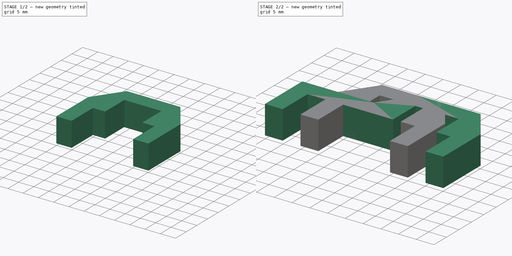
[diagram: build sequence overview — one tinted view per stage of 2, left to right]
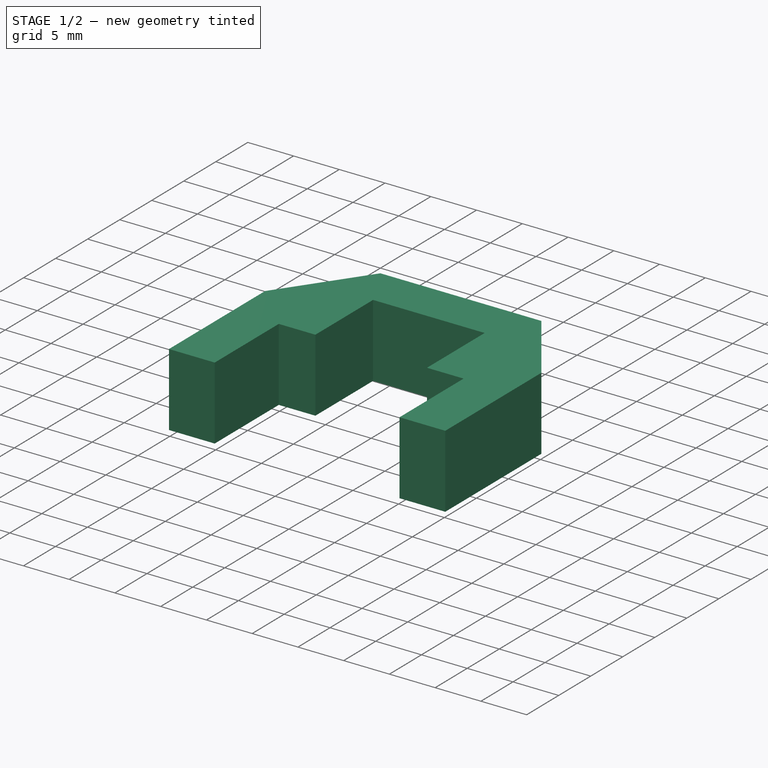
[diagram: stage 1 of 2 — iso view after this stage's code; geometry added in this stage tinted green]
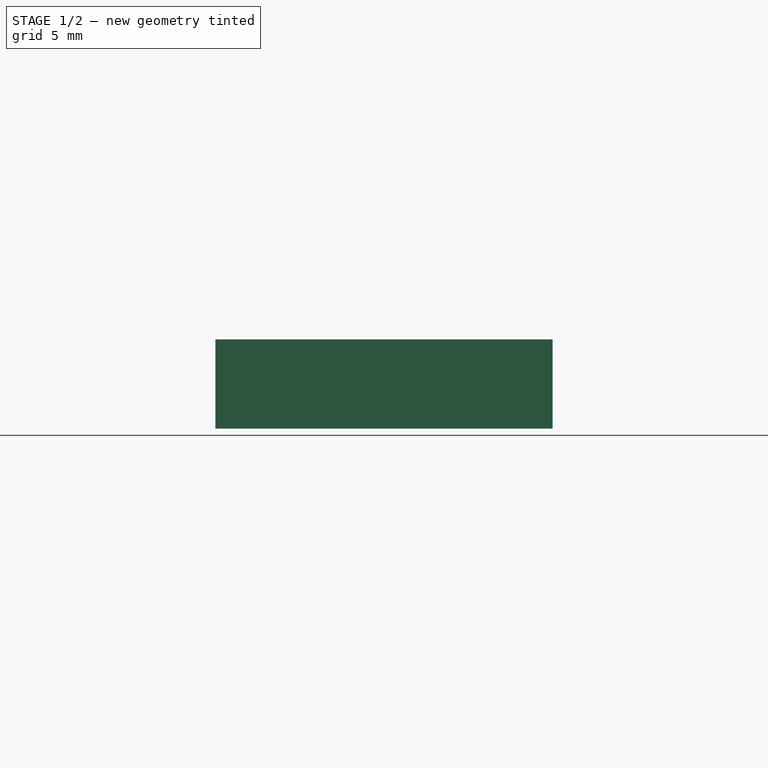
[diagram: stage 1 of 2 — front view after this stage's code; geometry added in this stage tinted green]
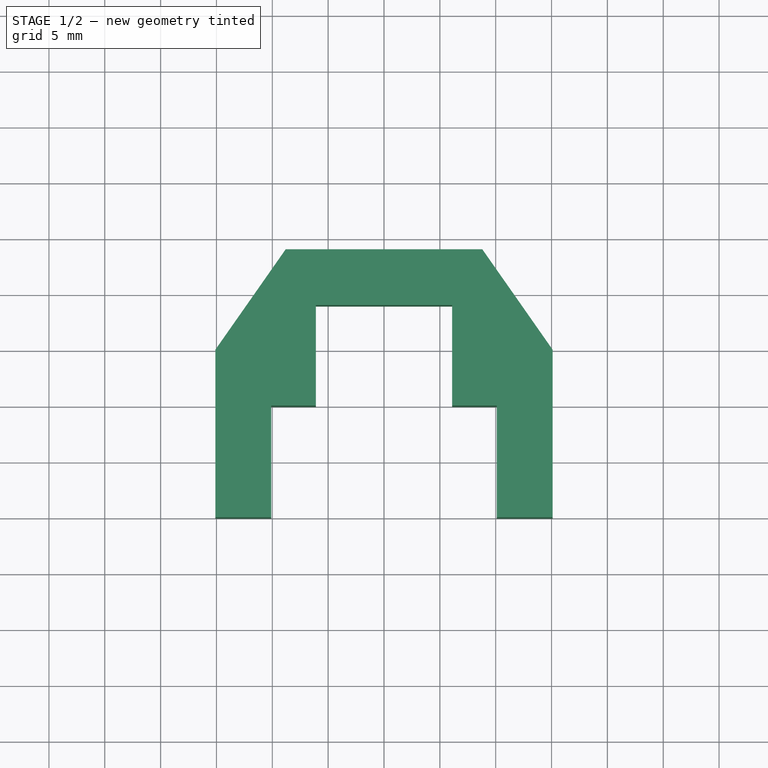
[diagram: stage 1 of 2 — top view after this stage's code; geometry added in this stage tinted green]
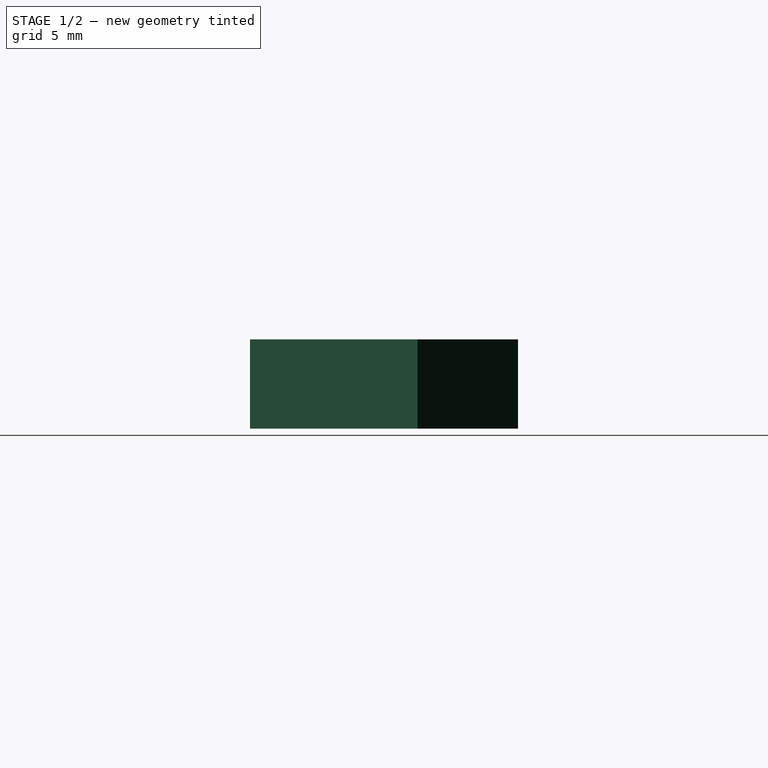
[diagram: stage 1 of 2 — right view after this stage's code; geometry added in this stage tinted green]
FCSTD DOCUMENT  (FreeCAD 0.20R27078 (Git))
Label: rail fixture
License: All rights reserved
LicenseURL: http://en.wikipedia.org/wiki/All_rights_reserved
objects: Sketcher::SketchObject×2, PartDesign::Pad×2, PartDesign::Body×2
note: 8 computed .brp shape members not serialized (recipe doc carries the construction recipe); baked Part::Feature solids carry a one-line shape summary decoded from their .brp

FEATURE [PartDesign::Body] Body  label="mgn12 - 2040"
  Group = -> [Sketch,Pad]
  Origin = -> Origin
  Tip = -> Pad
FEATURE [Sketcher::SketchObject] Sketch001
  FullyConstrained = true
  MapMode = 5
  Support = -> [XY_Plane001]
  sketch-geometry (16):
    g0: LineSegment StartX=-6.1 StartY=0 StartZ=0 EndX=-6.1 EndY=9 EndZ=0
    g1: LineSegment StartX=-6.1 StartY=9 StartZ=0 EndX=6.1 EndY=9 EndZ=0
    g2: LineSegment StartX=6.1 StartY=9 StartZ=0 EndX=6.1 EndY=0 EndZ=0
    g3: LineSegment StartX=-15.1 StartY=5 StartZ=0 EndX=-15.1 EndY=-10 EndZ=0
    g4: LineSegment StartX=-15.1 StartY=-10 StartZ=0 EndX=-10.1 EndY=-10 EndZ=0
    g5: LineSegment StartX=-10.1 StartY=-10 StartZ=0 EndX=-10.1 EndY=0 EndZ=0
    g6: LineSegment StartX=6.1 StartY=0 StartZ=0 EndX=10.1 EndY=0 EndZ=0
    g7: LineSegment StartX=10.1 StartY=0 StartZ=0 EndX=10.1 EndY=-10 EndZ=0
    g8: LineSegment StartX=10.1 StartY=-10 StartZ=0 EndX=15.1 EndY=-10 EndZ=0
    g9: LineSegment StartX=15.1 StartY=-10 StartZ=0 EndX=15.1 EndY=5 EndZ=0
    g10: LineSegment StartX=8.79813 StartY=14 StartZ=0 EndX=15.1 EndY=5 EndZ=0
    g11: LineSegment StartX=-8.79813 StartY=14 StartZ=0 EndX=8.79813 EndY=14 EndZ=0
    g12: LineSegment StartX=-8.79813 StartY=14 StartZ=0 EndX=-15.1 EndY=5 EndZ=0
    g13: LineSegment StartX=6.1 StartY=9 StartZ=0 EndX=12.2992 EndY=9 EndZ=0
    g14: LineSegment StartX=-6.1 StartY=9 StartZ=0 EndX=-12.2992 EndY=9 EndZ=0
    g15: LineSegment StartX=-10.1 StartY=0 StartZ=0 EndX=-6.1 EndY=0 EndZ=0
  constraints (47):
    c: PointOnObject(g0,g-1)
    c: Vertical(g0)
    c: Coincident(g1,g0)
    c: Coincident(g2,g1)
    c: PointOnObject(g2,g-1)
    c: Vertical(g2)
    c: DistanceX(g0,g2) = 12.2
    c: DistanceY(g2,g2) = 9
    c: Vertical(g3)
    c: Coincident(g4,g3)
    c: Horizontal(g4)
    c: Coincident(g5,g4)
    c: PointOnObject(g5,g-1)
    c: Vertical(g5)
    c: Coincident(g6,g2)
    c: PointOnObject(g6,g-1)
    c: Coincident(g7,g6)
    c: Vertical(g7)
    c: Coincident(g8,g7)
    c: Horizontal(g8)
    c: Coincident(g9,g8)
    c: Vertical(g9)
    c: DistanceY(g5,g5) = 10
    c: DistanceX(g4,g7) = 20.2
    c: DistanceX(g4,g4) = 5
    c: Equal(g4,g8)
    c: Coincident(g10,g9)
    c: Equal(g9,g3)
    c: DistanceY(g3,g3) = 15
    c: Horizontal(g1)
    c: DistanceY(g1,g10) = 5
    c: Angle(g10,g9) = 2.53073
    c: Symmetric(g4,g7,g-2)
    c: Coincident(g11,g10)
    c: Horizontal(g11)
    c: Coincident(g12,g11)
    c: Equal(g12,g10)
    c: Coincident(g13,g1)
    c: PointOnObject(g13,g10)
    c: Horizontal(g13)
    c: Coincident(g14,g0)
    c: PointOnObject(g14,g12)
    c: Horizontal(g14)
    c: Equal(g14,g13)
    c: Coincident(g3,g12)
    c: Coincident(g15,g5)
    c: Coincident(g15,g0)
FEATURE [PartDesign::Pad] Pad001
  Direction = (0,0,1)
  Length = 8
  Length2 = 100
  Profile = -> Sketch001
  ReferenceAxis = -> Sketch001 [N_Axis]
  Refine = true
  Type = 0
FEATURE [PartDesign::Body] Body001  label="mgn12 - 2020"
  Group = -> [Sketch001,Pad001]
  Origin = -> Origin001
  Tip = -> Pad001
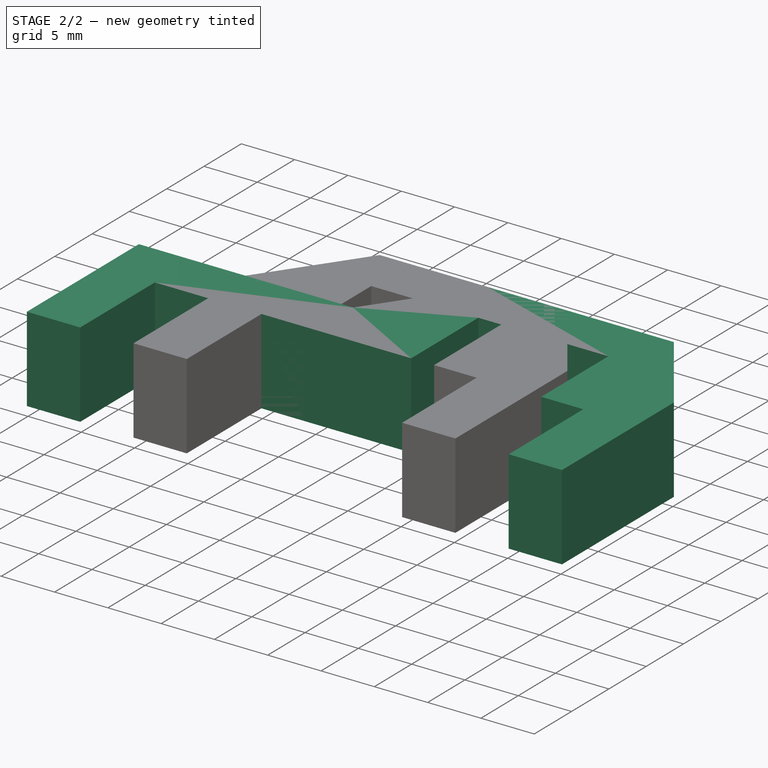
[diagram: stage 2 of 2 — iso view after this stage's code; geometry added in this stage tinted green]
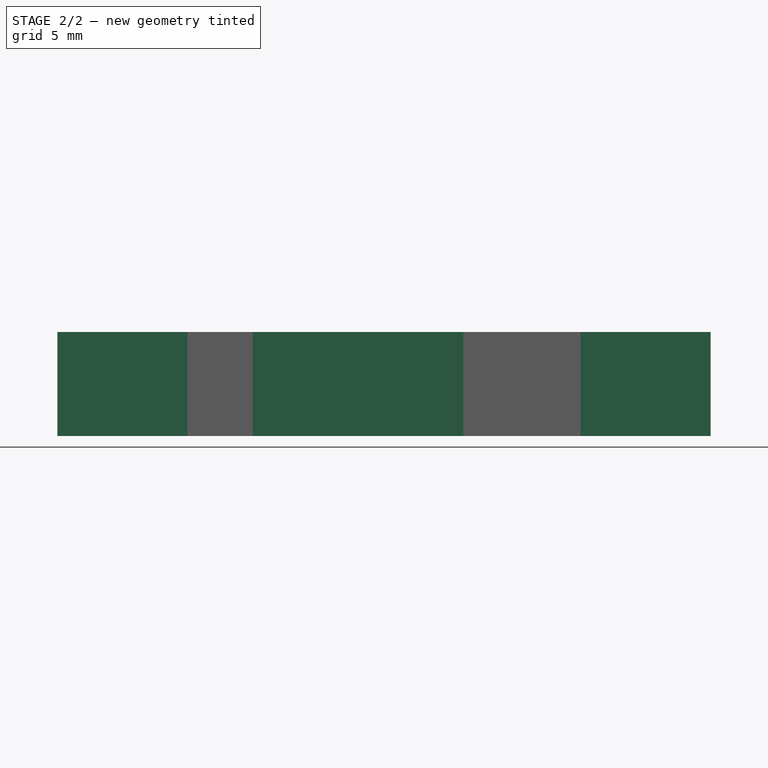
[diagram: stage 2 of 2 — front view after this stage's code; geometry added in this stage tinted green]
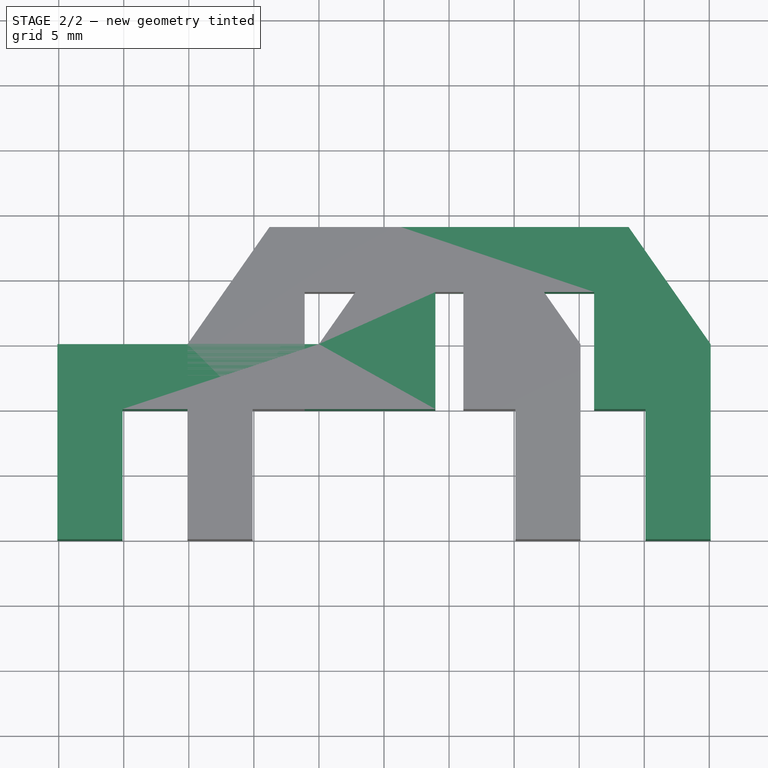
[diagram: stage 2 of 2 — top view after this stage's code; geometry added in this stage tinted green]
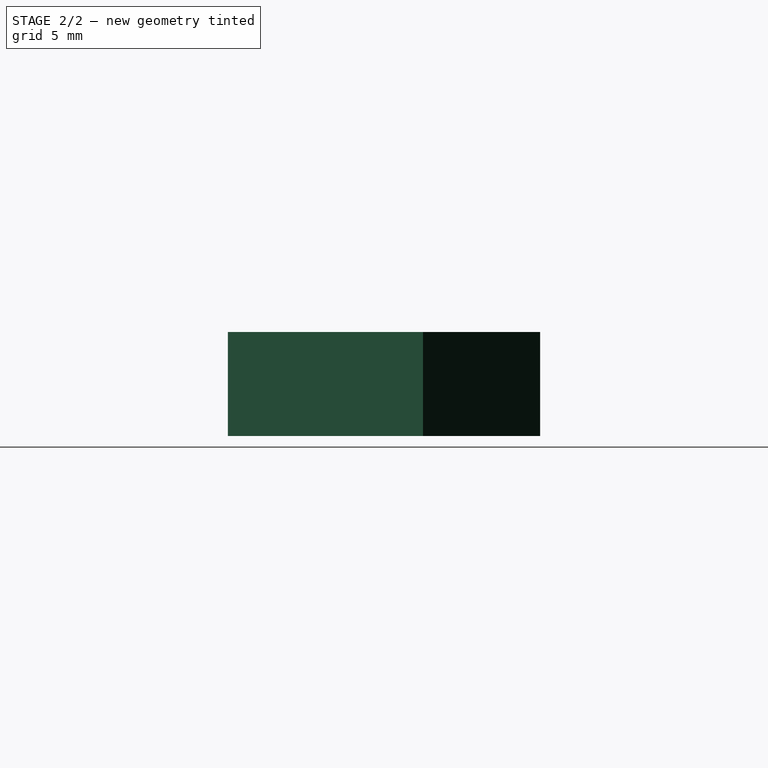
[diagram: stage 2 of 2 — right view after this stage's code; geometry added in this stage tinted green]
FEATURE [Sketcher::SketchObject] Sketch
  FullyConstrained = true
  MapMode = 5
  Support = -> [XY_Plane]
  sketch-geometry (18):
    g0: LineSegment StartX=3.95 StartY=0 StartZ=0 EndX=3.95 EndY=9 EndZ=0
    g1: LineSegment StartX=3.95 StartY=9 StartZ=0 EndX=16.15 EndY=9 EndZ=0
    g2: LineSegment StartX=16.15 StartY=9 StartZ=0 EndX=16.15 EndY=0 EndZ=0
    g3: LineSegment StartX=-25.1 StartY=5 StartZ=0 EndX=-25.1 EndY=-10 EndZ=0
    g4: LineSegment StartX=-25.1 StartY=-10 StartZ=0 EndX=-20.1 EndY=-10 EndZ=0
    g5: LineSegment StartX=-20.1 StartY=-10 StartZ=0 EndX=-20.1 EndY=0 EndZ=0
    g6: LineSegment StartX=16.15 StartY=0 StartZ=0 EndX=20.1 EndY=0 EndZ=0
    g7: LineSegment StartX=20.1 StartY=0 StartZ=0 EndX=20.1 EndY=-10 EndZ=0
    g8: LineSegment StartX=20.1 StartY=-10 StartZ=0 EndX=25.1 EndY=-10 EndZ=0
    g9: LineSegment StartX=25.1 StartY=-10 StartZ=0 EndX=25.1 EndY=5 EndZ=0
    g10: LineSegment StartX=18.7981 StartY=14 StartZ=0 EndX=25.1 EndY=5 EndZ=0
    g11: LineSegment StartX=-20.1 StartY=0 StartZ=0 EndX=0 EndY=0 EndZ=0
    g12: LineSegment StartX=0 StartY=0 StartZ=0 EndX=3.95 EndY=0 EndZ=0
    g13: LineSegment StartX=1.30187 StartY=14 StartZ=0 EndX=18.7981 EndY=14 EndZ=0
    g14: LineSegment StartX=1.30187 StartY=14 StartZ=0 EndX=-5 EndY=5 EndZ=0
    g15: LineSegment StartX=-5 StartY=5 StartZ=0 EndX=-25.1 EndY=5 EndZ=0
    g16: LineSegment StartX=16.15 StartY=9 StartZ=0 EndX=22.2992 EndY=9 EndZ=0
    g17: LineSegment StartX=3.95 StartY=9 StartZ=0 EndX=-2.19917 EndY=9 EndZ=0
  constraints (52):
    c: PointOnObject(g0,g-1)
    c: Vertical(g0)
    c: Coincident(g1,g0)
    c: Coincident(g2,g1)
    c: PointOnObject(g2,g-1)
    c: Vertical(g2)
    c: DistanceX(g0,g2) = 12.2
    c: DistanceY(g2,g2) = 9
    c: Vertical(g3)
    c: Coincident(g4,g3)
    c: Horizontal(g4)
    c: Coincident(g5,g4)
    c: PointOnObject(g5,g-1)
    c: Vertical(g5)
    c: Coincident(g6,g2)
    c: PointOnObject(g6,g-1)
    c: Coincident(g7,g6)
    c: Vertical(g7)
    c: Coincident(g8,g7)
    c: Horizontal(g8)
    c: Coincident(g9,g8)
    c: Vertical(g9)
    c: DistanceY(g5,g5) = 10
    c: DistanceX(g4,g7) = 40.2
    c: DistanceX(g4,g4) = 5
    c: Equal(g4,g8)
    c: Coincident(g10,g9)
    c: Equal(g9,g3)
    c: DistanceY(g3,g3) = 15
    c: Horizontal(g1)
    c: Coincident(g11,g5)
    c: Coincident(g11,g-1)
    c: Coincident(g12,g11)
    c: Coincident(g12,g0)
    c: Equal(g12,g6)
    c: DistanceY(g1,g10) = 5
    c: Angle(g10,g9) = 2.53073
    c: Symmetric(g4,g7,g-2)
    c: Coincident(g13,g10)
    c: Horizontal(g13)
    c: Coincident(g14,g13)
    c: Coincident(g15,g14)
    c: Coincident(g15,g3)
    c: Horizontal(g15)
    c: Equal(g14,g10)
    c: Coincident(g16,g1)
    c: PointOnObject(g16,g10)
    c: Horizontal(g16)
    c: Coincident(g17,g0)
    c: PointOnObject(g17,g14)
    c: Horizontal(g17)
    c: Equal(g17,g16)
FEATURE [PartDesign::Pad] Pad
  Direction = (0,0,1)
  Length = 8
  Length2 = 100
  Profile = -> Sketch
  ReferenceAxis = -> Sketch [N_Axis]
  Refine = true
  Type = 0
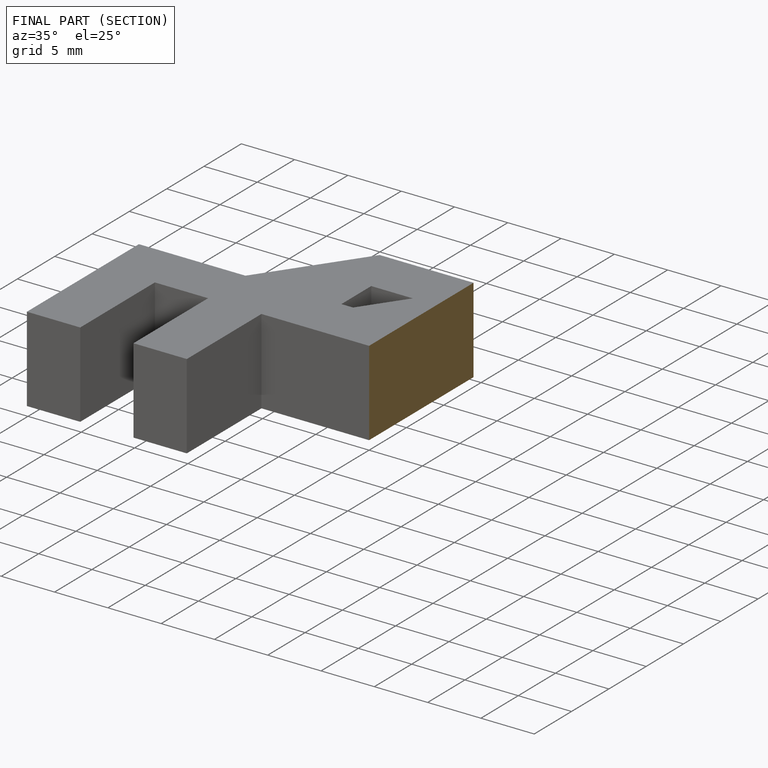
[diagram: finished part — half-section view (interior)]
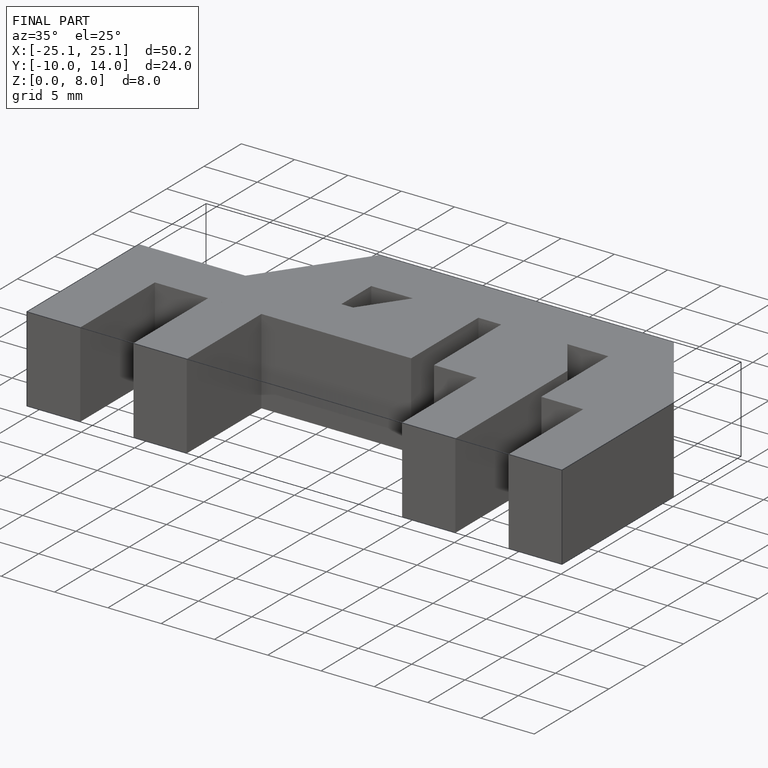
[diagram: finished part — iso view with bounding-box wireframe]
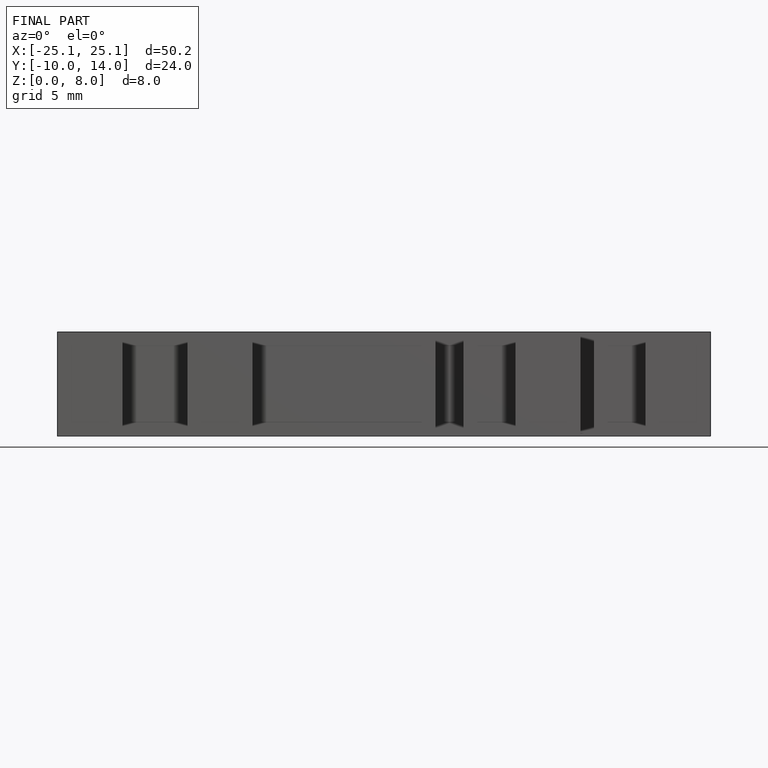
[diagram: finished part — front view with bounding-box wireframe]
